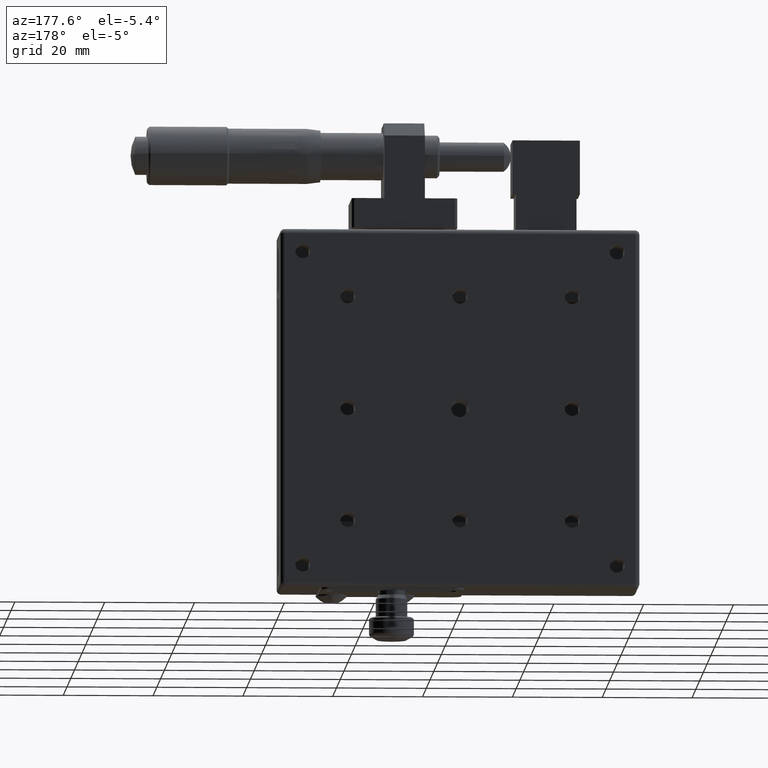
[diagram: clean part render]
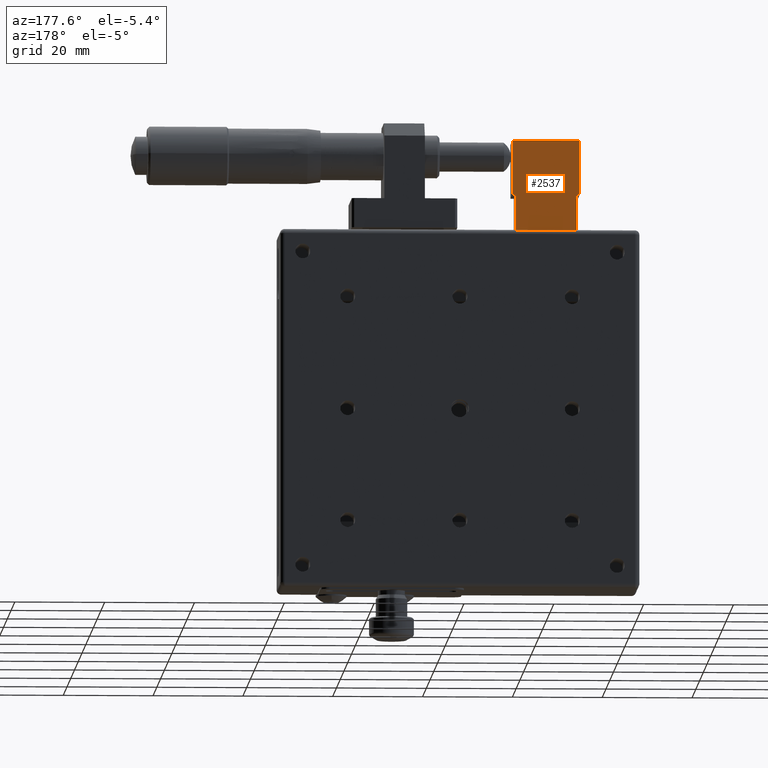
[diagram: same view with one face highlighted and labeled with its STEP entity id]
A machine part, auxiliary view. The second image highlights one B-rep face of the part: STEP entity #2537.
In plain terms, the highlighted planar face has unit normal (0, 1, 0).
Its self-contained STEP definition (entity closure, byte-faithful):
#182 = FACE_OUTER_BOUND ( 'NONE', #4958, .T. ) ;
#838 = CARTESIAN_POINT ( 'NONE',  ( -29.59855123262065035, 11.64470148381817971, 40.00000000000000000 ) ) ;
#1231 = CARTESIAN_POINT ( 'NONE',  ( -15.34855123262065035, 11.64470148381819925, 60.00000000000000000 ) ) ;
#2025 = DIRECTION ( 'NONE',  ( 9.518025403329419160E-17, -4.441448257547239715E-17, 1.000000000000000000 ) ) ;
#2110 = EDGE_CURVE ( 'NONE', #19704, #11159, #2920, .T. ) ;
#2537 = ADVANCED_FACE ( 'NONE', ( #182 ), #29252, .T. ) ;
#2920 = LINE ( 'NONE', #16834, #26929 ) ;
#2979 = CARTESIAN_POINT ( 'NONE',  ( -29.59855123262065035, 11.64470148381817971, 48.00000000000000000 ) ) ;
#3113 = EDGE_CURVE ( 'NONE', #30785, #21600, #12256, .T. ) ;
#4084 = LINE ( 'NONE', #14200, #16055 ) ;
#4369 = CARTESIAN_POINT ( 'NONE',  ( -30.34855123262065035, 11.64470148381819925, 60.00000000000000000 ) ) ;
#4646 = EDGE_CURVE ( 'NONE', #21154, #26006, #4084, .T. ) ;
#4668 = LINE ( 'NONE', #4369, #29046 ) ;
#4958 = EDGE_LOOP ( 'NONE', ( #18155, #17694, #24808, #18120, #20927, #24627, #19551, #29650 ) ) ;
#5236 = CARTESIAN_POINT ( 'NONE',  ( -30.34855123262065035, 11.64470148381819925, 60.00000000000000000 ) ) ;
#5240 = LINE ( 'NONE', #24381, #30536 ) ;
#6202 = VECTOR ( 'NONE', #8594, 1000.000000000000000 ) ;
#6274 = DIRECTION ( 'NONE',  ( 1.000000000000000000, 2.220446049250315053E-16, -1.323996321525601914E-17 ) ) ;
#8122 = CARTESIAN_POINT ( 'NONE',  ( -16.09855123262065035, 11.64470148381819925, 40.00000000000000000 ) ) ;
#8215 = AXIS2_PLACEMENT_3D ( 'NONE', #5236, #26890, #14899 ) ;
#8594 = DIRECTION ( 'NONE',  ( -1.867123108129359875E-16, -4.441448257547244646E-17, 1.000000000000000000 ) ) ;
#9688 = VERTEX_POINT ( 'NONE', #2979 ) ;
#11027 = CARTESIAN_POINT ( 'NONE',  ( -30.34855123262065035, 11.64470148381819925, 48.00000000000000000 ) ) ;
#11159 = VERTEX_POINT ( 'NONE', #16845 ) ;
#11200 = EDGE_CURVE ( 'NONE', #21600, #19704, #4668, .T. ) ;
#11274 = VECTOR ( 'NONE', #6274, 1000.000000000000000 ) ;
#11784 = DIRECTION ( 'NONE',  ( 1.000000000000000000, 2.220446049250315053E-16, -1.323996321525599912E-17 ) ) ;
#12256 = LINE ( 'NONE', #25798, #6202 ) ;
#12936 = LINE ( 'NONE', #11027, #11274 ) ;
#13600 = EDGE_CURVE ( 'NONE', #9688, #22578, #24719, .T. ) ;
#14200 = CARTESIAN_POINT ( 'NONE',  ( -16.09855123262065035, 11.64470148381819925, 40.00000000000000000 ) ) ;
#14622 = DIRECTION ( 'NONE',  ( -9.518025403329419160E-17, 4.441448257547239715E-17, -1.000000000000000000 ) ) ;
#14899 = DIRECTION ( 'NONE',  ( 1.000000000000000000, -2.220446049250315053E-16, 0.000000000000000000 ) ) ;
#16055 = VECTOR ( 'NONE', #2025, 1000.000000000000000 ) ;
#16509 = VECTOR ( 'NONE', #27718, 1000.000000000000000 ) ;
#16834 = CARTESIAN_POINT ( 'NONE',  ( -15.34855123262065035, 11.64470148381819925, 40.00000000000000000 ) ) ;
#16845 = CARTESIAN_POINT ( 'NONE',  ( -15.34855123262065035, 11.64470148381819925, 48.00000000000000000 ) ) ;
#16959 = DIRECTION ( 'NONE',  ( 1.000000000000000000, 2.220446049250309876E-16, 2.299724671420490169E-15 ) ) ;
#17694 = ORIENTED_EDGE ( 'NONE', *, *, #27392, .F. ) ;
#18120 = ORIENTED_EDGE ( 'NONE', *, *, #11200, .T. ) ;
#18155 = ORIENTED_EDGE ( 'NONE', *, *, #13600, .F. ) ;
#18314 = VECTOR ( 'NONE', #14622, 1000.000000000000000 ) ;
#19551 = ORIENTED_EDGE ( 'NONE', *, *, #4646, .F. ) ;
#19704 = VERTEX_POINT ( 'NONE', #1231 ) ;
#20048 = CARTESIAN_POINT ( 'NONE',  ( -30.34855123262065035, 11.64470148381819925, 60.00000000000000000 ) ) ;
#20927 = ORIENTED_EDGE ( 'NONE', *, *, #2110, .T. ) ;
#21154 = VERTEX_POINT ( 'NONE', #8122 ) ;
#21600 = VERTEX_POINT ( 'NONE', #20048 ) ;
#22578 = VERTEX_POINT ( 'NONE', #28316 ) ;
#23277 = LINE ( 'NONE', #27856, #16509 ) ;
#24381 = CARTESIAN_POINT ( 'NONE',  ( -16.09855123262065035, 11.64470148381819925, 48.00000000000000000 ) ) ;
#24627 = ORIENTED_EDGE ( 'NONE', *, *, #30111, .F. ) ;
#24719 = LINE ( 'NONE', #838, #18314 ) ;
#24808 = ORIENTED_EDGE ( 'NONE', *, *, #3113, .T. ) ;
#25798 = CARTESIAN_POINT ( 'NONE',  ( -30.34855123262065035, 11.64470148381819925, 40.00000000000000000 ) ) ;
#26006 = VERTEX_POINT ( 'NONE', #27473 ) ;
#26890 = DIRECTION ( 'NONE',  ( 2.220446049250315053E-16, 1.000000000000000000, 4.441448257547239715E-17 ) ) ;
#26929 = VECTOR ( 'NONE', #28974, 1000.000000000000000 ) ;
#27392 = EDGE_CURVE ( 'NONE', #30785, #9688, #12936, .T. ) ;
#27393 = CARTESIAN_POINT ( 'NONE',  ( -30.34855123262065035, 11.64470148381819925, 48.00000000000000000 ) ) ;
#27473 = CARTESIAN_POINT ( 'NONE',  ( -16.09855123262065035, 11.64470148381819925, 48.00000000000000000 ) ) ;
#27718 = DIRECTION ( 'NONE',  ( -1.000000000000000000, -2.220446049250315053E-16, 1.323996321525599912E-17 ) ) ;
#27856 = CARTESIAN_POINT ( 'NONE',  ( -30.34855123262065035, 11.64470148381819925, 40.00000000000000000 ) ) ;
#28316 = CARTESIAN_POINT ( 'NONE',  ( -29.59855123262065035, 11.64470148381819925, 40.00000000000000000 ) ) ;
#28974 = DIRECTION ( 'NONE',  ( -7.349621058358409060E-17, 4.441448257547239715E-17, -1.000000000000000000 ) ) ;
#29046 = VECTOR ( 'NONE', #11784, 1000.000000000000000 ) ;
#29252 = PLANE ( 'NONE',  #8215 ) ;
#29650 = ORIENTED_EDGE ( 'NONE', *, *, #30841, .T. ) ;
#30111 = EDGE_CURVE ( 'NONE', #26006, #11159, #5240, .T. ) ;
#30536 = VECTOR ( 'NONE', #16959, 1000.000000000000000 ) ;
#30785 = VERTEX_POINT ( 'NONE', #27393 ) ;
#30841 = EDGE_CURVE ( 'NONE', #21154, #22578, #23277, .T. ) ;